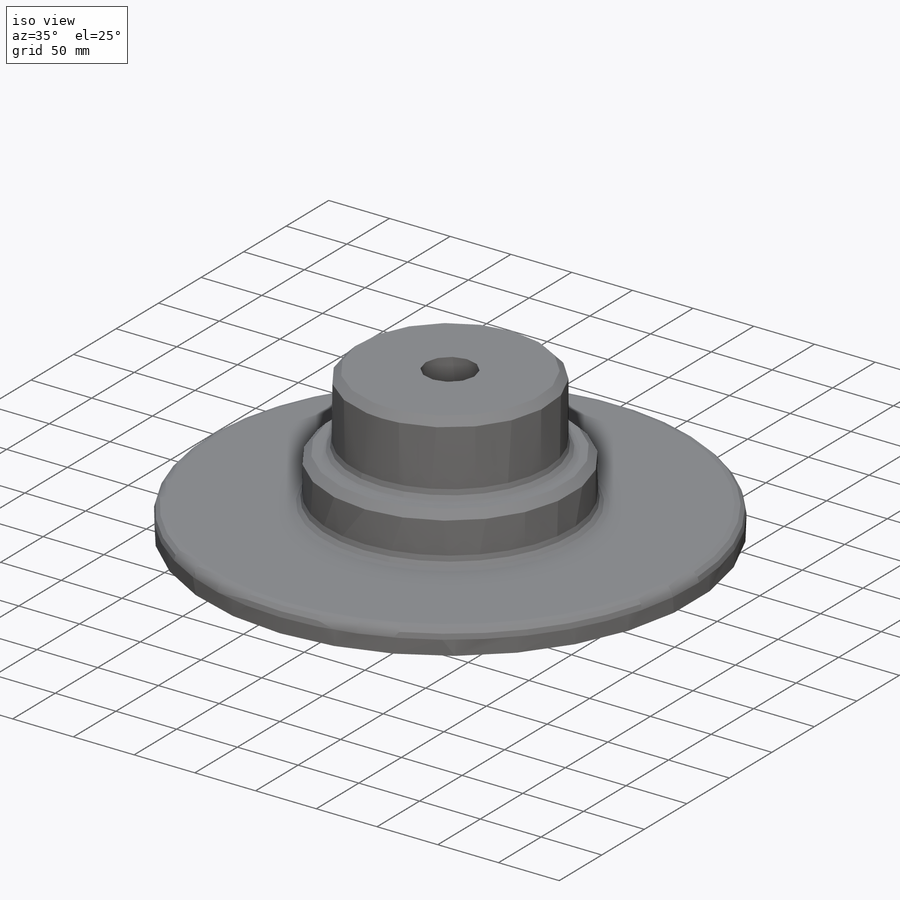
[diagram: iso view]
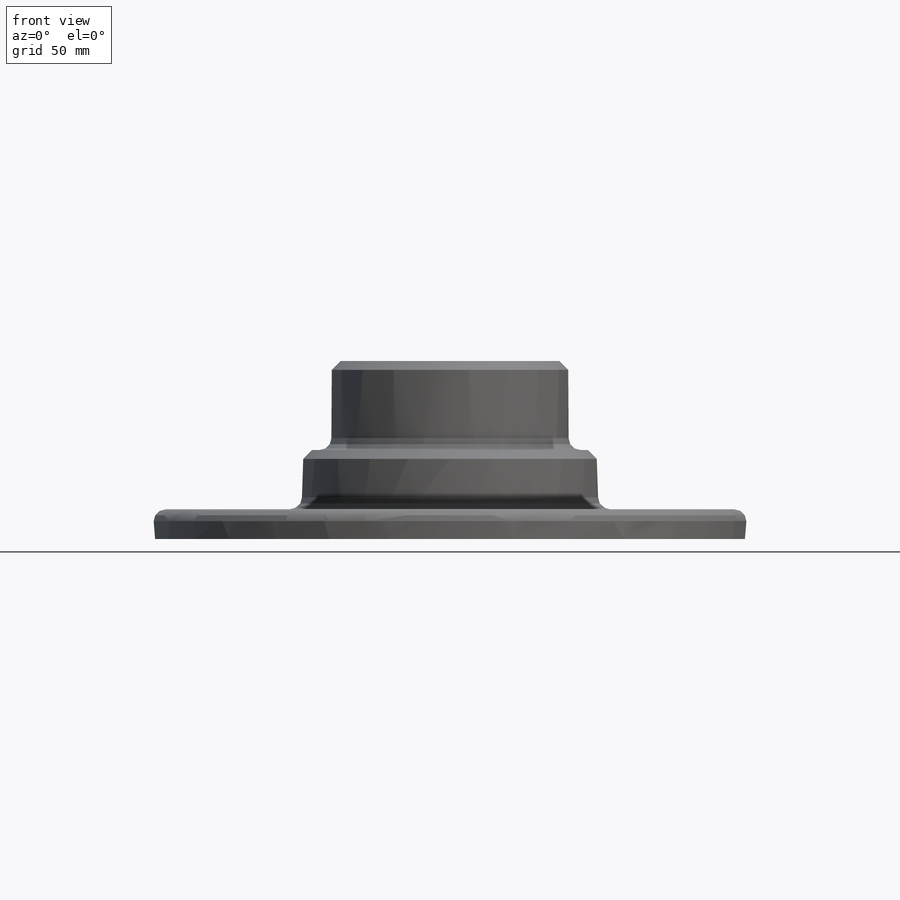
[diagram: front view]
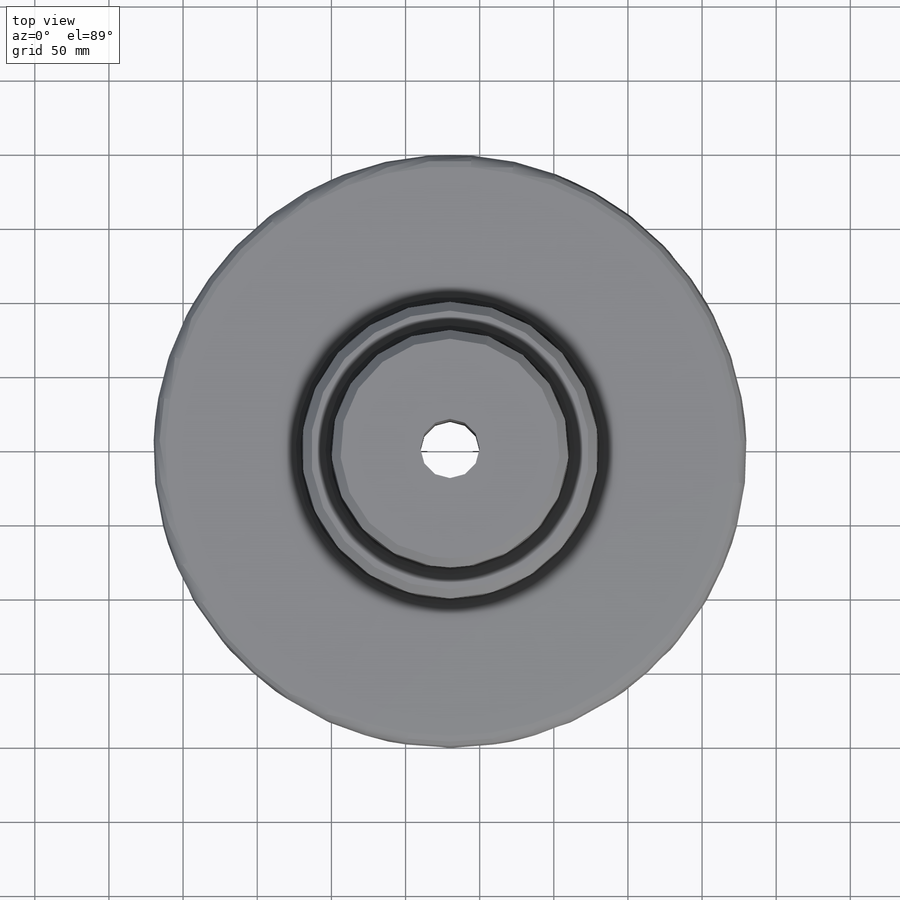
[diagram: top view]
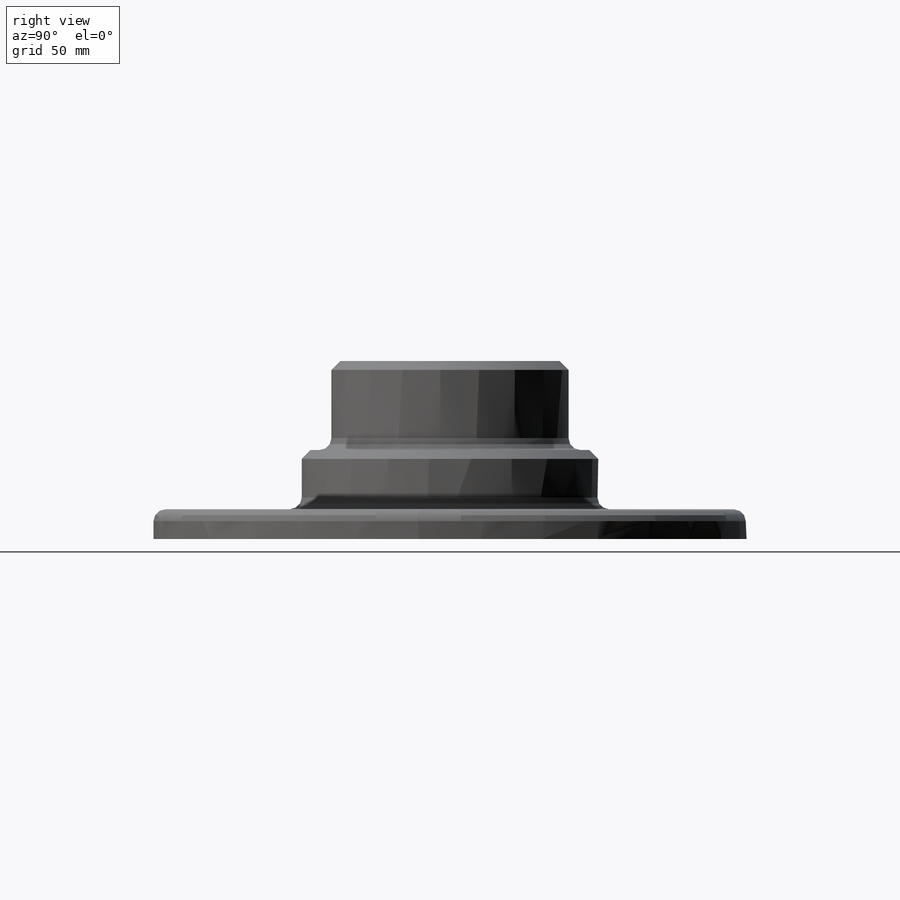
[diagram: right view]
SOLIDWORKS PART (.sldprt)
format: sldprt  version: not decoded by parser v0  size: 216,064 bytes
history: native  units: mm
features: fillet x2, material x1, sketch x1, revolve x1, chamfer x1 (+12 scaffold rows collapsed)
feature tree (18):
  scaffold x12  (default folders/planes/origin — collapsed)
  material  "Material <not specified>"
  sketch  "Sketch1"  dims[D1=120.0mm D2=20.0mm D3=40.0mm D4=60.0mm D5=20.0mm D6=180.0mm D7=20.0mm]
  revolve  "Revolve5"  Angle=360deg
  fillet  "Fillet4"  Radius=8mm
  chamfer  "Chamfer5"  Distance=6mm Angle=45deg
  fillet  "Fillet5"  Radius=8mm
decode coverage: 5 of 5 modeling features carry decoded parameters
note: suppression state not decoded; provenance and decode notes live in map.json
